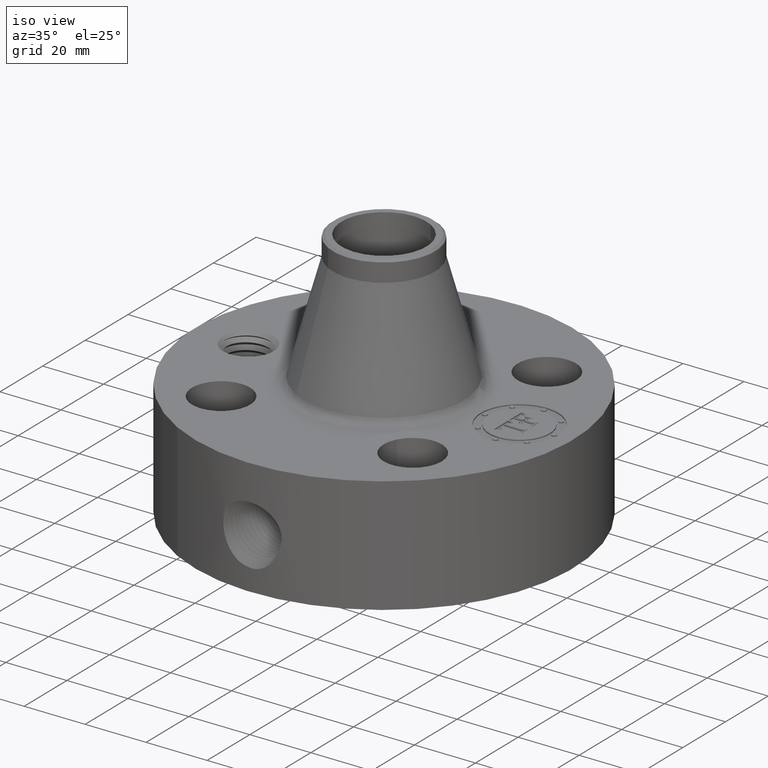
[diagram: clean part render]
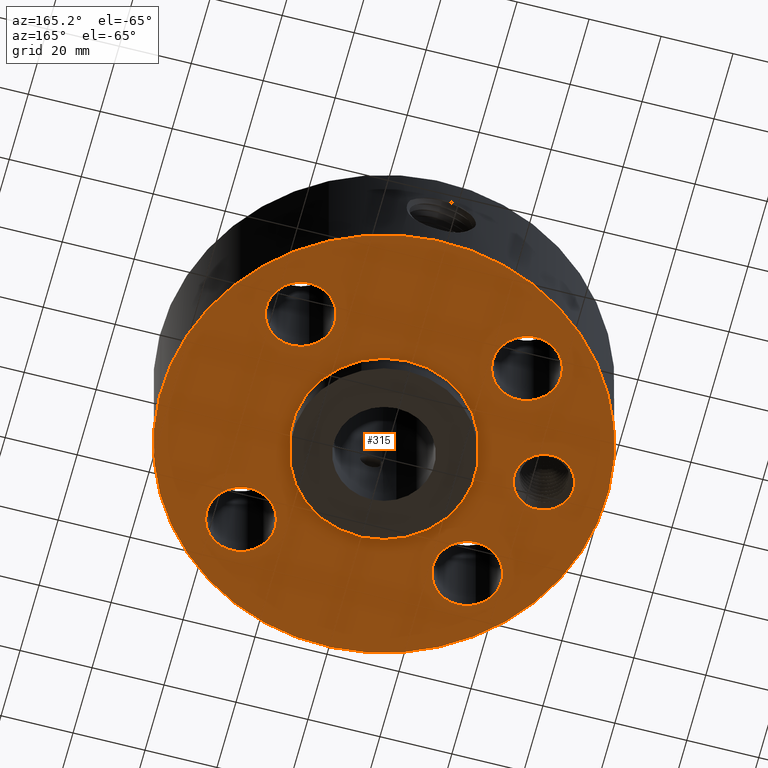
[diagram: tour spotlight — one face highlighted and labeled with its STEP entity id]
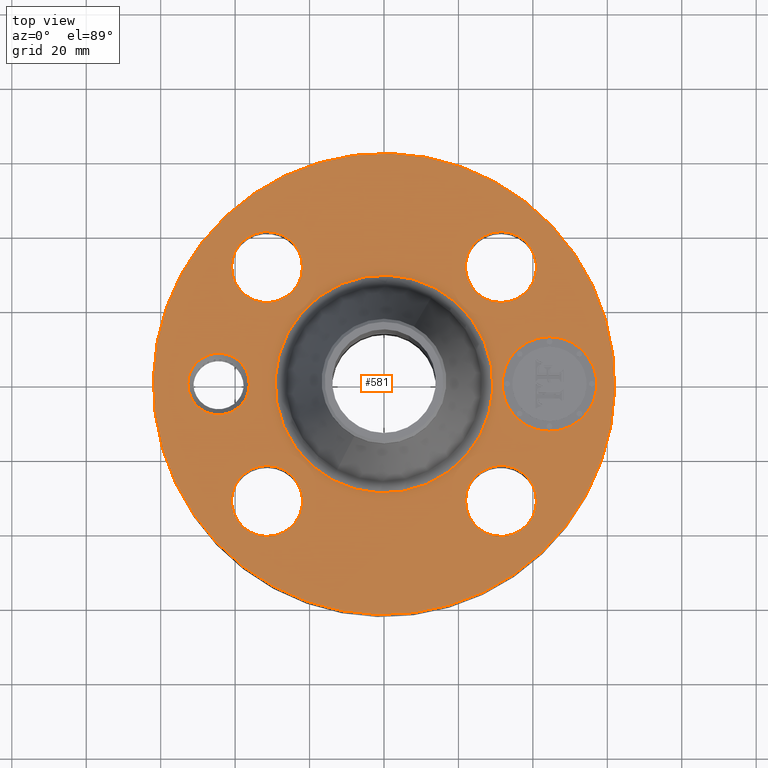
[diagram: tour spotlight — one face highlighted and labeled with its STEP entity id]
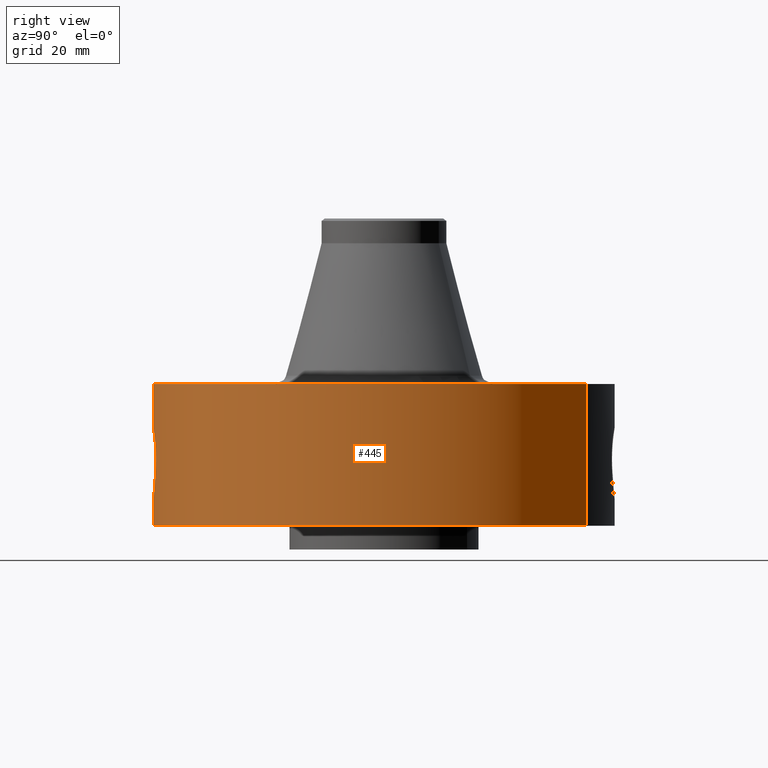
[diagram: tour spotlight — one face highlighted and labeled with its STEP entity id]
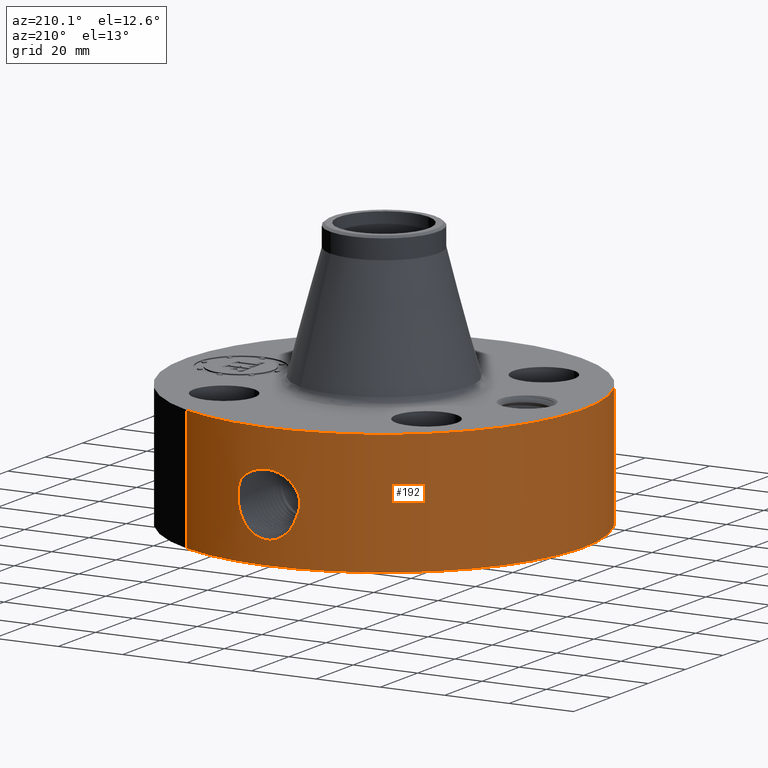
[diagram: tour spotlight — one face highlighted and labeled with its STEP entity id]
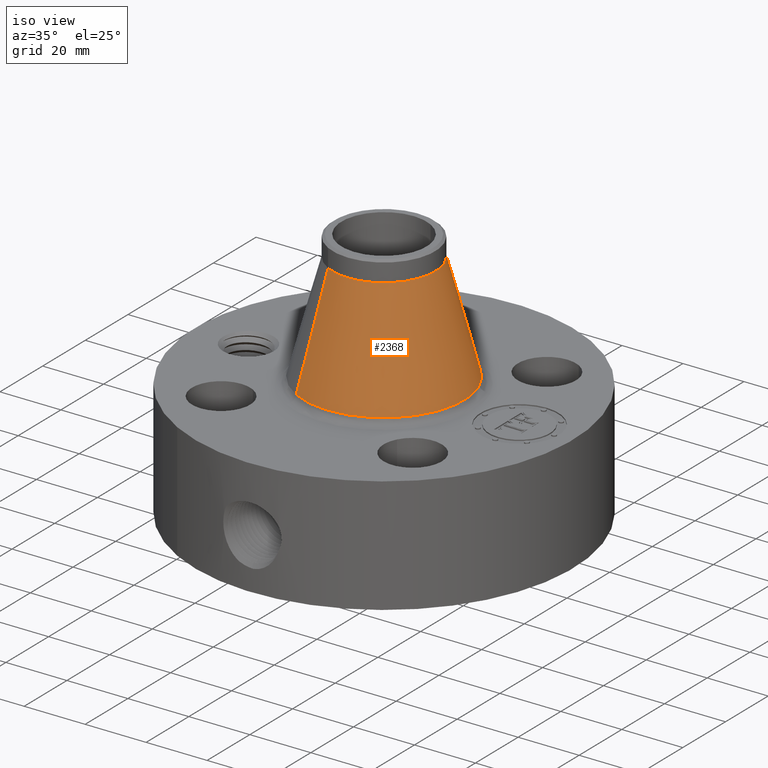
[diagram: tour spotlight — one face highlighted and labeled with its STEP entity id]
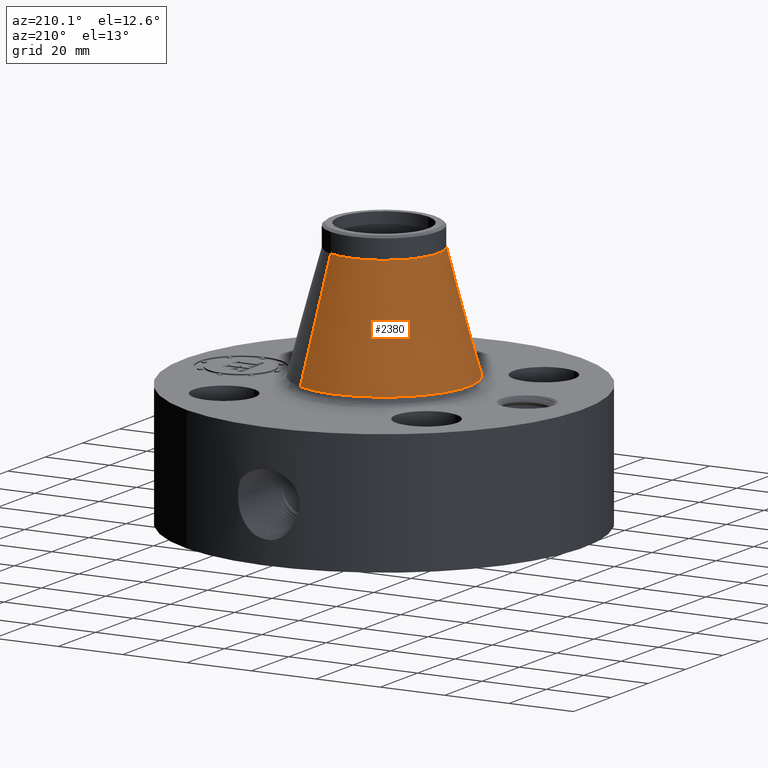
[diagram: tour spotlight — one face highlighted and labeled with its STEP entity id]
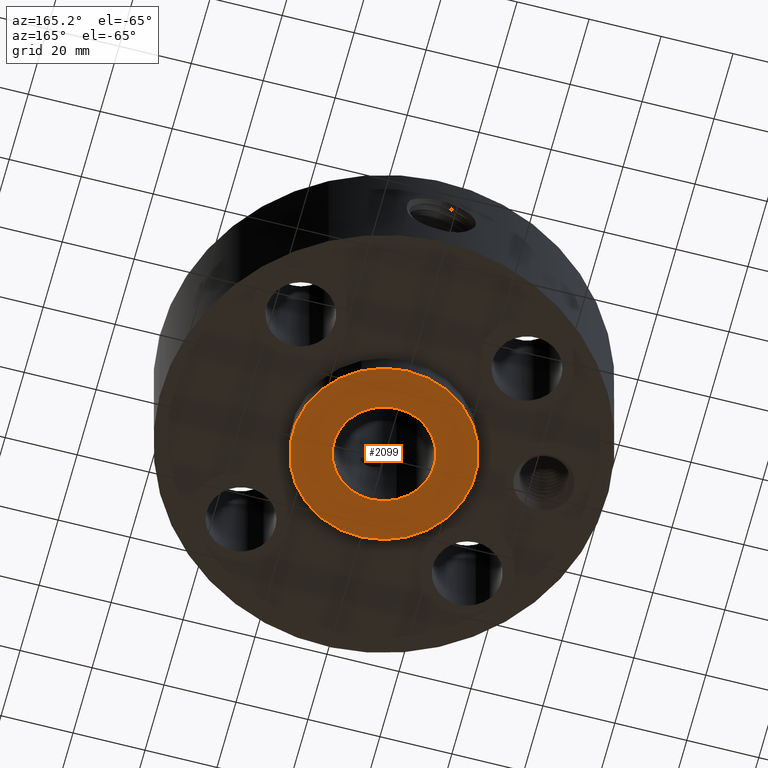
[diagram: tour spotlight — one face highlighted and labeled with its STEP entity id]
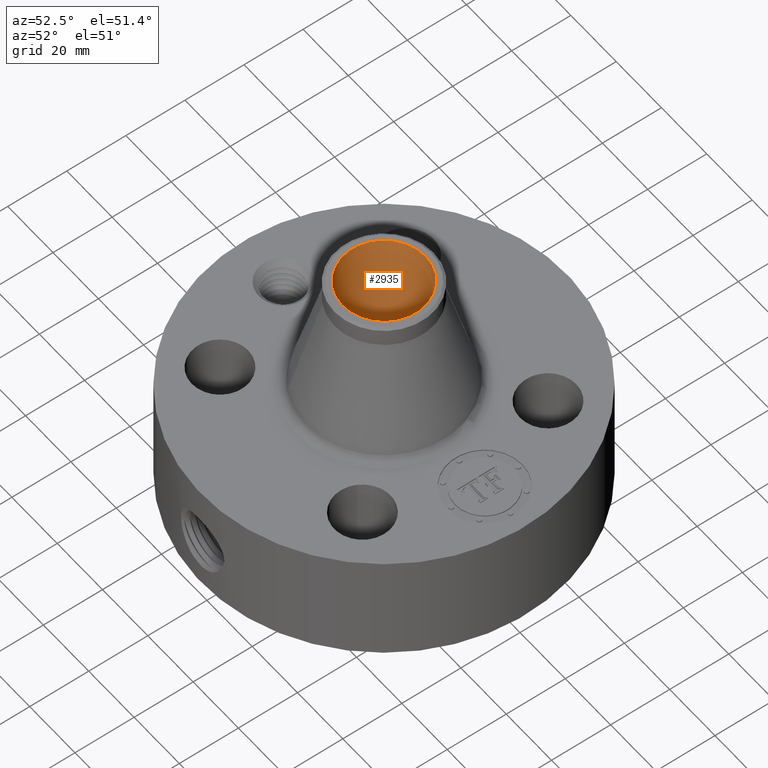
[diagram: tour spotlight — one face highlighted and labeled with its STEP entity id]
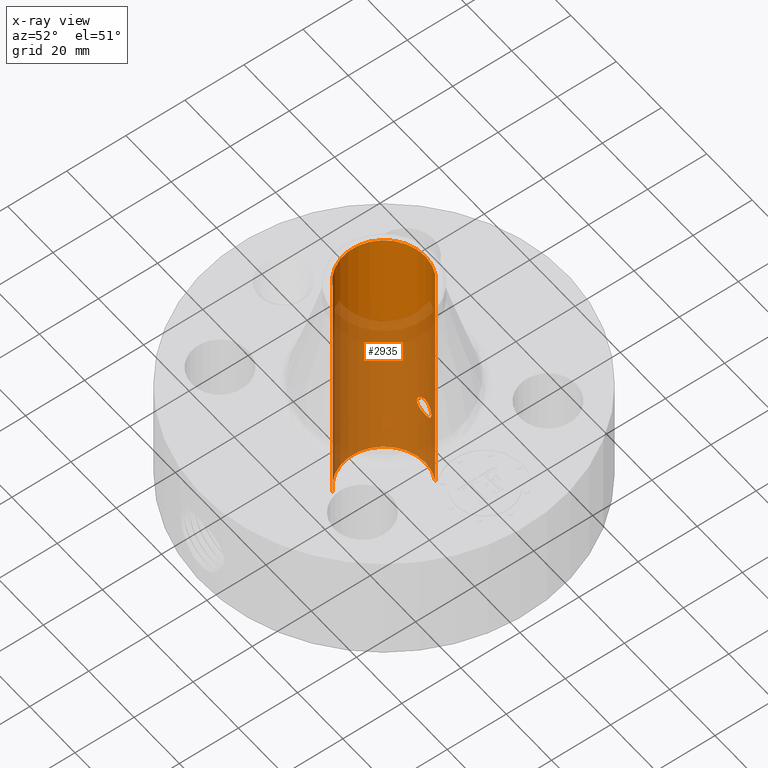
[diagram: x-ray of the same camera — body ghosted, this tour face saturated]
A machine part: a face-by-face anatomy tour. The part has 764 B-rep faces; the first image is the clean iso view, then the 8 largest visible faces are spotlighted one at a time (largest first), each with its STEP entity span.

Face 1 — auxiliary view, entity #315. In plain terms, the highlighted planar face has unit normal (0, 0, -1).
Definition (entity closure, byte-faithful):
#42=AXIS2_PLACEMENT_3D('Circle Axis2P3D',#40,#41,$) ;
#196=AXIS2_PLACEMENT_3D('Plane Axis2P3D',#193,#194,#195) ;
#200=AXIS2_PLACEMENT_3D('Circle Axis2P3D',#198,#199,$) ;
#209=AXIS2_PLACEMENT_3D('Circle Axis2P3D',#207,#208,$) ;
#218=AXIS2_PLACEMENT_3D('Circle Axis2P3D',#216,#217,$) ;
#227=AXIS2_PLACEMENT_3D('Circle Axis2P3D',#225,#226,$) ;
#236=AXIS2_PLACEMENT_3D('Circle Axis2P3D',#234,#235,$) ;
#245=AXIS2_PLACEMENT_3D('Circle Axis2P3D',#243,#244,$) ;
#254=AXIS2_PLACEMENT_3D('Circle Axis2P3D',#252,#253,$) ;
#263=AXIS2_PLACEMENT_3D('Circle Axis2P3D',#261,#262,$) ;
#272=AXIS2_PLACEMENT_3D('Circle Axis2P3D',#270,#271,$) ;
#281=AXIS2_PLACEMENT_3D('Circle Axis2P3D',#279,#280,$) ;
#290=AXIS2_PLACEMENT_3D('Circle Axis2P3D',#288,#289,$) ;
#299=AXIS2_PLACEMENT_3D('Circle Axis2P3D',#297,#298,$) ;
#308=AXIS2_PLACEMENT_3D('Circle Axis2P3D',#306,#307,$) ;
#40=CARTESIAN_POINT('Axis2P3D Location',(0.,0.,0.250000000001)) ;
#44=CARTESIAN_POINT('Vertex',(-1.1697983142,-2.14130145102,0.250000000001)) ;
#46=CARTESIAN_POINT('Vertex',(1.1697983142,2.14130145102,0.250000000001)) ;
#193=CARTESIAN_POINT('Axis2P3D Location',(0.,1.,0.250000000001)) ;
#198=CARTESIAN_POINT('Axis2P3D Location',(0.,0.,0.250000000001)) ;
#207=CARTESIAN_POINT('Axis2P3D Location',(-1.75000000001,0.,0.250000000001)) ;
#211=CARTESIAN_POINT('Vertex',(-1.46421523873,-0.156124926647,0.250000000001)) ;
#213=CARTESIAN_POINT('Vertex',(-2.03578476129,0.156124926647,0.250000000001)) ;
#216=CARTESIAN_POINT('Axis2P3D Location',(-1.75000000001,0.,0.250000000001)) ;
#225=CARTESIAN_POINT('Axis2P3D Location',(1.23743686708,-1.23743686708,0.250000000001)) ;
#229=CARTESIAN_POINT('Vertex',(1.56653032779,-1.41722144406,0.250000000001)) ;
#231=CARTESIAN_POINT('Vertex',(0.908343406371,-1.0576522901,0.250000000001)) ;
#234=CARTESIAN_POINT('Axis2P3D Location',(1.23743686708,-1.23743686708,0.250000000001)) ;
#243=CARTESIAN_POINT('Axis2P3D Location',(0.,0.,0.250000000001)) ;
#247=CARTESIAN_POINT('Vertex',(0.479425538606,0.877582561894,0.250000000001)) ;
#249=CARTESIAN_POINT('Vertex',(-0.479425538606,-0.877582561894,0.250000000001)) ;
#252=CARTESIAN_POINT('Axis2P3D Location',(0.,0.,0.250000000001)) ;
#261=CARTESIAN_POINT('Axis2P3D Location',(-1.23743686708,-1.23743686708,0.250000000001)) ;
#265=CARTESIAN_POINT('Vertex',(-1.0576522901,-0.908343406371,0.250000000001)) ;
#267=CARTESIAN_POINT('Vertex',(-1.41722144406,-1.56653032779,0.250000000001)) ;
#270=CARTESIAN_POINT('Axis2P3D Location',(-1.23743686708,-1.23743686708,0.250000000001)) ;
#279=CARTESIAN_POINT('Axis2P3D Location',(-1.23743686708,1.23743686708,0.250000000001)) ;
#283=CARTESIAN_POINT('Vertex',(-0.908343406371,1.0576522901,0.250000000001)) ;
#285=CARTESIAN_POINT('Vertex',(-1.56653032779,1.41722144406,0.250000000001)) ;
#288=CARTESIAN_POINT('Axis2P3D Location',(-1.23743686708,1.23743686708,0.250000000001)) ;
#297=CARTESIAN_POINT('Axis2P3D Location',(1.23743686708,1.23743686708,0.250000000001)) ;
#301=CARTESIAN_POINT('Vertex',(1.0576522901,0.908343406371,0.250000000001)) ;
#303=CARTESIAN_POINT('Vertex',(1.41722144406,1.56653032779,0.250000000001)) ;
#306=CARTESIAN_POINT('Axis2P3D Location',(1.23743686708,1.23743686708,0.250000000001)) ;
#41=DIRECTION('Axis2P3D Direction',(0.,0.,-0.0393700787402)) ;
#194=DIRECTION('Axis2P3D Direction',(0.,0.,-0.0393700787402)) ;
#195=DIRECTION('Axis2P3D XDirection',(0.0393700787402,0.,0.)) ;
#199=DIRECTION('Axis2P3D Direction',(0.,0.,-0.0393700787402)) ;
#208=DIRECTION('Axis2P3D Direction',(0.,0.,-0.0393700787402)) ;
#217=DIRECTION('Axis2P3D Direction',(0.,0.,-0.0393700787402)) ;
#226=DIRECTION('Axis2P3D Direction',(0.,0.,-0.0393700787402)) ;
#235=DIRECTION('Axis2P3D Direction',(0.,0.,-0.0393700787402)) ;
#244=DIRECTION('Axis2P3D Direction',(0.,0.,-0.0393700787402)) ;
#253=DIRECTION('Axis2P3D Direction',(0.,0.,-0.0393700787402)) ;
#262=DIRECTION('Axis2P3D Direction',(0.,0.,-0.0393700787402)) ;
#271=DIRECTION('Axis2P3D Direction',(0.,0.,-0.0393700787402)) ;
#280=DIRECTION('Axis2P3D Direction',(0.,0.,-0.0393700787402)) ;
#289=DIRECTION('Axis2P3D Direction',(0.,0.,-0.0393700787402)) ;
#298=DIRECTION('Axis2P3D Direction',(0.,0.,-0.0393700787402)) ;
#307=DIRECTION('Axis2P3D Direction',(0.,0.,-0.0393700787402)) ;
#204=ORIENTED_EDGE('',*,*,#48,.T.) ;
#205=ORIENTED_EDGE('',*,*,#202,.T.) ;
#222=ORIENTED_EDGE('',*,*,#215,.F.) ;
#223=ORIENTED_EDGE('',*,*,#220,.F.) ;
#240=ORIENTED_EDGE('',*,*,#233,.F.) ;
#241=ORIENTED_EDGE('',*,*,#238,.F.) ;
#258=ORIENTED_EDGE('',*,*,#251,.F.) ;
#259=ORIENTED_EDGE('',*,*,#256,.F.) ;
#276=ORIENTED_EDGE('',*,*,#269,.F.) ;
#277=ORIENTED_EDGE('',*,*,#274,.F.) ;
#294=ORIENTED_EDGE('',*,*,#287,.F.) ;
#295=ORIENTED_EDGE('',*,*,#292,.F.) ;
#312=ORIENTED_EDGE('',*,*,#305,.F.) ;
#313=ORIENTED_EDGE('',*,*,#310,.F.) ;
#224=FACE_BOUND('',#221,.T.) ;
#242=FACE_BOUND('',#239,.T.) ;
#260=FACE_BOUND('',#257,.T.) ;
#278=FACE_BOUND('',#275,.T.) ;
#296=FACE_BOUND('',#293,.T.) ;
#314=FACE_BOUND('',#311,.T.) ;
#315=ADVANCED_FACE('PartBody',(#206,#224,#242,#260,#278,#296,#314),#197,.T.) ;
#43=CIRCLE('generated circle',#42,2.44000000001) ;
#201=CIRCLE('generated circle',#200,2.44000000001) ;
#210=CIRCLE('generated circle',#209,0.325650000001) ;
#219=CIRCLE('generated circle',#218,0.325650000001) ;
#228=CIRCLE('generated circle',#227,0.375000000001) ;
#237=CIRCLE('generated circle',#236,0.375000000001) ;
#246=CIRCLE('generated circle',#245,1.) ;
#255=CIRCLE('generated circle',#254,1.) ;
#264=CIRCLE('generated circle',#263,0.375000000002) ;
#273=CIRCLE('generated circle',#272,0.375000000002) ;
#282=CIRCLE('generated circle',#281,0.375000000002) ;
#291=CIRCLE('generated circle',#290,0.375000000002) ;
#300=CIRCLE('generated circle',#299,0.375000000001) ;
#309=CIRCLE('generated circle',#308,0.375000000001) ;
#48=EDGE_CURVE('',#45,#47,#43,.T.) ;
#202=EDGE_CURVE('',#47,#45,#201,.T.) ;
#215=EDGE_CURVE('',#212,#214,#210,.T.) ;
#220=EDGE_CURVE('',#214,#212,#219,.T.) ;
#233=EDGE_CURVE('',#230,#232,#228,.T.) ;
#238=EDGE_CURVE('',#232,#230,#237,.T.) ;
#251=EDGE_CURVE('',#248,#250,#246,.T.) ;
#256=EDGE_CURVE('',#250,#248,#255,.T.) ;
#269=EDGE_CURVE('',#266,#268,#264,.T.) ;
#274=EDGE_CURVE('',#268,#266,#273,.T.) ;
#287=EDGE_CURVE('',#284,#286,#282,.T.) ;
#292=EDGE_CURVE('',#286,#284,#291,.T.) ;
#305=EDGE_CURVE('',#302,#304,#300,.T.) ;
#310=EDGE_CURVE('',#304,#302,#309,.T.) ;
#203=EDGE_LOOP('',(#204,#205)) ;
#221=EDGE_LOOP('',(#222,#223)) ;
#239=EDGE_LOOP('',(#240,#241)) ;
#257=EDGE_LOOP('',(#258,#259)) ;
#275=EDGE_LOOP('',(#276,#277)) ;
#293=EDGE_LOOP('',(#294,#295)) ;
#311=EDGE_LOOP('',(#312,#313)) ;
#206=FACE_OUTER_BOUND('',#203,.T.) ;
#197=PLANE('',#196) ;
#45=VERTEX_POINT('',#44) ;
#47=VERTEX_POINT('',#46) ;
#212=VERTEX_POINT('',#211) ;
#214=VERTEX_POINT('',#213) ;
#230=VERTEX_POINT('',#229) ;
#232=VERTEX_POINT('',#231) ;
#248=VERTEX_POINT('',#247) ;
#250=VERTEX_POINT('',#249) ;
#266=VERTEX_POINT('',#265) ;
#268=VERTEX_POINT('',#267) ;
#284=VERTEX_POINT('',#283) ;
#286=VERTEX_POINT('',#285) ;
#302=VERTEX_POINT('',#301) ;
#304=VERTEX_POINT('',#303) ;

Face 2 — top view, entity #581. In plain terms, the highlighted planar face has unit normal (0, 0, -1).
Definition (entity closure, byte-faithful):
#58=AXIS2_PLACEMENT_3D('Circle Axis2P3D',#56,#57,$) ;
#318=AXIS2_PLACEMENT_3D('Circle Axis2P3D',#316,#317,$) ;
#449=AXIS2_PLACEMENT_3D('Plane Axis2P3D',#446,#447,#448) ;
#457=AXIS2_PLACEMENT_3D('Circle Axis2P3D',#455,#456,$) ;
#466=AXIS2_PLACEMENT_3D('Circle Axis2P3D',#464,#465,$) ;
#475=AXIS2_PLACEMENT_3D('Circle Axis2P3D',#473,#474,$) ;
#484=AXIS2_PLACEMENT_3D('Circle Axis2P3D',#482,#483,$) ;
#493=AXIS2_PLACEMENT_3D('Circle Axis2P3D',#491,#492,$) ;
#502=AXIS2_PLACEMENT_3D('Circle Axis2P3D',#500,#501,$) ;
#511=AXIS2_PLACEMENT_3D('Circle Axis2P3D',#509,#510,$) ;
#520=AXIS2_PLACEMENT_3D('Circle Axis2P3D',#518,#519,$) ;
#529=AXIS2_PLACEMENT_3D('Circle Axis2P3D',#527,#528,$) ;
#538=AXIS2_PLACEMENT_3D('Circle Axis2P3D',#536,#537,$) ;
#547=AXIS2_PLACEMENT_3D('Circle Axis2P3D',#545,#546,$) ;
#556=AXIS2_PLACEMENT_3D('Circle Axis2P3D',#554,#555,$) ;
#565=AXIS2_PLACEMENT_3D('Circle Axis2P3D',#563,#564,$) ;
#574=AXIS2_PLACEMENT_3D('Circle Axis2P3D',#572,#573,$) ;
#53=CARTESIAN_POINT('Vertex',(-1.1697983142,-2.14130145102,1.75000000001)) ;
#56=CARTESIAN_POINT('Axis2P3D Location',(0.,0.,1.75000000001)) ;
#60=CARTESIAN_POINT('Vertex',(1.1697983142,2.14130145102,1.75000000001)) ;
#316=CARTESIAN_POINT('Axis2P3D Location',(0.,0.,1.75000000001)) ;
#446=CARTESIAN_POINT('Axis2P3D Location',(0.,2.44000000001,1.75000000001)) ;
#455=CARTESIAN_POINT('Axis2P3D Location',(-1.75000000001,5.59482469102E-016,1.75000000001)) ;
#459=CARTESIAN_POINT('Vertex',(-2.03578476129,0.156124926647,1.75000000001)) ;
#461=CARTESIAN_POINT('Vertex',(-1.46421523873,-0.156124926647,1.75000000001)) ;
#464=CARTESIAN_POINT('Axis2P3D Location',(-1.75000000001,5.59482469102E-016,1.75000000001)) ;
#473=CARTESIAN_POINT('Axis2P3D Location',(1.23743686708,-1.23743686708,1.75000000001)) ;
#477=CARTESIAN_POINT('Vertex',(0.908343406371,-1.0576522901,1.75000000001)) ;
#479=CARTESIAN_POINT('Vertex',(1.56653032779,-1.41722144406,1.75000000001)) ;
#482=CARTESIAN_POINT('Axis2P3D Location',(1.23743686708,-1.23743686708,1.75000000001)) ;
#491=CARTESIAN_POINT('Axis2P3D Location',(0.,0.,1.75000000001)) ;
#495=CARTESIAN_POINT('Vertex',(-0.552304154846,-1.0109859741,1.75000000001)) ;
#497=CARTESIAN_POINT('Vertex',(0.552304154846,1.0109859741,1.75000000001)) ;
#500=CARTESIAN_POINT('Axis2P3D Location',(0.,0.,1.75000000001)) ;
#509=CARTESIAN_POINT('Axis2P3D Location',(-1.23743686708,-1.23743686708,1.75000000001)) ;
#513=CARTESIAN_POINT('Vertex',(-1.41722144406,-1.56653032779,1.75000000001)) ;
#515=CARTESIAN_POINT('Vertex',(-1.0576522901,-0.908343406371,1.75000000001)) ;
#518=CARTESIAN_POINT('Axis2P3D Location',(-1.23743686708,-1.23743686708,1.75000000001)) ;
#527=CARTESIAN_POINT('Axis2P3D Location',(-1.23743686708,1.23743686708,1.75000000001)) ;
#531=CARTESIAN_POINT('Vertex',(-1.56653032779,1.41722144406,1.75000000001)) ;
#533=CARTESIAN_POINT('Vertex',(-0.908343406371,1.0576522901,1.75000000001)) ;
#536=CARTESIAN_POINT('Axis2P3D Location',(-1.23743686708,1.23743686708,1.75000000001)) ;
#545=CARTESIAN_POINT('Axis2P3D Location',(1.23743686708,1.23743686708,1.75000000001)) ;
#549=CARTESIAN_POINT('Vertex',(1.41722144406,1.56653032779,1.75000000001)) ;
#551=CARTESIAN_POINT('Vertex',(1.0576522901,0.908343406371,1.75000000001)) ;
#554=CARTESIAN_POINT('Axis2P3D Location',(1.23743686708,1.23743686708,1.75000000001)) ;
#563=CARTESIAN_POINT('Axis2P3D Location',(1.75000000001,-8.67197827109E-015,1.75000000001)) ;
#567=CARTESIAN_POINT('Vertex',(1.75000000001,0.499999995002,1.75000000001)) ;
#569=CARTESIAN_POINT('Vertex',(1.75000000001,-0.499999995002,1.75000000001)) ;
#572=CARTESIAN_POINT('Axis2P3D Location',(1.75000000001,-8.95171950564E-015,1.75000000001)) ;
#57=DIRECTION('Axis2P3D Direction',(0.,0.,-0.0393700787402)) ;
#317=DIRECTION('Axis2P3D Direction',(0.,0.,-0.0393700787402)) ;
#447=DIRECTION('Axis2P3D Direction',(0.,0.,-0.0393700787402)) ;
#448=DIRECTION('Axis2P3D XDirection',(0.0393700787402,0.,0.)) ;
#456=DIRECTION('Axis2P3D Direction',(0.,0.,-0.0393700787402)) ;
#465=DIRECTION('Axis2P3D Direction',(0.,0.,-0.0393700787402)) ;
#474=DIRECTION('Axis2P3D Direction',(0.,0.,-0.0393700787402)) ;
#483=DIRECTION('Axis2P3D Direction',(0.,0.,-0.0393700787402)) ;
#492=DIRECTION('Axis2P3D Direction',(0.,0.,-0.0393700787402)) ;
#501=DIRECTION('Axis2P3D Direction',(0.,0.,-0.0393700787402)) ;
#510=DIRECTION('Axis2P3D Direction',(0.,0.,-0.0393700787402)) ;
#519=DIRECTION('Axis2P3D Direction',(0.,0.,-0.0393700787402)) ;
#528=DIRECTION('Axis2P3D Direction',(0.,0.,-0.0393700787402)) ;
#537=DIRECTION('Axis2P3D Direction',(0.,0.,-0.0393700787402)) ;
#546=DIRECTION('Axis2P3D Direction',(0.,0.,-0.0393700787402)) ;
#555=DIRECTION('Axis2P3D Direction',(0.,0.,-0.0393700787402)) ;
#564=DIRECTION('Axis2P3D Direction',(0.,0.,-0.0393700787402)) ;
#573=DIRECTION('Axis2P3D Direction',(0.,0.,-0.0393700787402)) ;
#452=ORIENTED_EDGE('',*,*,#320,.F.) ;
#453=ORIENTED_EDGE('',*,*,#62,.F.) ;
#470=ORIENTED_EDGE('',*,*,#463,.T.) ;
#471=ORIENTED_EDGE('',*,*,#468,.T.) ;
#488=ORIENTED_EDGE('',*,*,#481,.T.) ;
#489=ORIENTED_EDGE('',*,*,#486,.T.) ;
#506=ORIENTED_EDGE('',*,*,#499,.T.) ;
#507=ORIENTED_EDGE('',*,*,#504,.T.) ;
#524=ORIENTED_EDGE('',*,*,#517,.T.) ;
#525=ORIENTED_EDGE('',*,*,#522,.T.) ;
#542=ORIENTED_EDGE('',*,*,#535,.T.) ;
#543=ORIENTED_EDGE('',*,*,#540,.T.) ;
#560=ORIENTED_EDGE('',*,*,#553,.T.) ;
#561=ORIENTED_EDGE('',*,*,#558,.T.) ;
#578=ORIENTED_EDGE('',*,*,#571,.T.) ;
#579=ORIENTED_EDGE('',*,*,#576,.T.) ;
#472=FACE_BOUND('',#469,.T.) ;
#490=FACE_BOUND('',#487,.T.) ;
#508=FACE_BOUND('',#505,.T.) ;
#526=FACE_BOUND('',#523,.T.) ;
#544=FACE_BOUND('',#541,.T.) ;
#562=FACE_BOUND('',#559,.T.) ;
#580=FACE_BOUND('',#577,.T.) ;
#581=ADVANCED_FACE('PartBody',(#454,#472,#490,#508,#526,#544,#562,#580),#450,.F.) ;
#59=CIRCLE('generated circle',#58,2.44000000001) ;
#319=CIRCLE('generated circle',#318,2.44000000001) ;
#458=CIRCLE('generated circle',#457,0.325650000001) ;
#467=CIRCLE('generated circle',#466,0.325650000001) ;
#476=CIRCLE('generated circle',#475,0.375000000001) ;
#485=CIRCLE('generated circle',#484,0.375000000001) ;
#494=CIRCLE('generated circle',#493,1.15201237809) ;
#503=CIRCLE('generated circle',#502,1.15201237809) ;
#512=CIRCLE('generated circle',#511,0.375000000002) ;
#521=CIRCLE('generated circle',#520,0.375000000002) ;
#530=CIRCLE('generated circle',#529,0.375000000002) ;
#539=CIRCLE('generated circle',#538,0.375000000002) ;
#548=CIRCLE('generated circle',#547,0.375000000001) ;
#557=CIRCLE('generated circle',#556,0.375000000001) ;
#566=CIRCLE('generated circle',#565,0.499999995002) ;
#575=CIRCLE('generated circle',#574,0.499999995002) ;
#62=EDGE_CURVE('',#54,#61,#59,.T.) ;
#320=EDGE_CURVE('',#61,#54,#319,.T.) ;
#463=EDGE_CURVE('',#460,#462,#458,.T.) ;
#468=EDGE_CURVE('',#462,#460,#467,.T.) ;
#481=EDGE_CURVE('',#478,#480,#476,.T.) ;
#486=EDGE_CURVE('',#480,#478,#485,.T.) ;
#499=EDGE_CURVE('',#496,#498,#494,.T.) ;
#504=EDGE_CURVE('',#498,#496,#503,.T.) ;
#517=EDGE_CURVE('',#514,#516,#512,.T.) ;
#522=EDGE_CURVE('',#516,#514,#521,.T.) ;
#535=EDGE_CURVE('',#532,#534,#530,.T.) ;
#540=EDGE_CURVE('',#534,#532,#539,.T.) ;
#553=EDGE_CURVE('',#550,#552,#548,.T.) ;
#558=EDGE_CURVE('',#552,#550,#557,.T.) ;
#571=EDGE_CURVE('',#568,#570,#566,.T.) ;
#576=EDGE_CURVE('',#570,#568,#575,.T.) ;
#451=EDGE_LOOP('',(#452,#453)) ;
#469=EDGE_LOOP('',(#470,#471)) ;
#487=EDGE_LOOP('',(#488,#489)) ;
#505=EDGE_LOOP('',(#506,#507)) ;
#523=EDGE_LOOP('',(#524,#525)) ;
#541=EDGE_LOOP('',(#542,#543)) ;
#559=EDGE_LOOP('',(#560,#561)) ;
#577=EDGE_LOOP('',(#578,#579)) ;
#454=FACE_OUTER_BOUND('',#451,.T.) ;
#450=PLANE('',#449) ;
#54=VERTEX_POINT('',#53) ;
#61=VERTEX_POINT('',#60) ;
#460=VERTEX_POINT('',#459) ;
#462=VERTEX_POINT('',#461) ;
#478=VERTEX_POINT('',#477) ;
#480=VERTEX_POINT('',#479) ;
#496=VERTEX_POINT('',#495) ;
#498=VERTEX_POINT('',#497) ;
#514=VERTEX_POINT('',#513) ;
#516=VERTEX_POINT('',#515) ;
#532=VERTEX_POINT('',#531) ;
#534=VERTEX_POINT('',#533) ;
#550=VERTEX_POINT('',#549) ;
#552=VERTEX_POINT('',#551) ;
#568=VERTEX_POINT('',#567) ;
#570=VERTEX_POINT('',#569) ;

Face 3 — right view, entity #445. In plain terms, the highlighted cylindrical surface (partial cylindrical patch) has radius 61.976 mm, axis along (0, 0, -1).
Definition (entity closure, byte-faithful):
#38=AXIS2_PLACEMENT_3D('Cylinder Axis2P3D',#35,#36,#37) ;
#200=AXIS2_PLACEMENT_3D('Circle Axis2P3D',#198,#199,$) ;
#318=AXIS2_PLACEMENT_3D('Circle Axis2P3D',#316,#317,$) ;
#35=CARTESIAN_POINT('Axis2P3D Location',(0.,0.,1.75000000001)) ;
#44=CARTESIAN_POINT('Vertex',(-1.1697983142,-2.14130145102,0.250000000001)) ;
#46=CARTESIAN_POINT('Vertex',(1.1697983142,2.14130145102,0.250000000001)) ;
#49=CARTESIAN_POINT('Line Origine',(-1.1697983142,-2.14130145102,1.)) ;
#53=CARTESIAN_POINT('Vertex',(-1.1697983142,-2.14130145102,1.75000000001)) ;
#60=CARTESIAN_POINT('Vertex',(1.1697983142,2.14130145102,1.75000000001)) ;
#63=CARTESIAN_POINT('Line Origine',(1.1697983142,2.14130145102,1.)) ;
#198=CARTESIAN_POINT('Axis2P3D Location',(0.,0.,0.250000000001)) ;
#316=CARTESIAN_POINT('Axis2P3D Location',(0.,0.,1.75000000001)) ;
#328=CARTESIAN_POINT('Control Point',(0.16192159428,-2.4346214074,1.25474246112)) ;
#329=CARTESIAN_POINT('Control Point',(0.124761678529,-2.43709283592,1.27394650423)) ;
#330=CARTESIAN_POINT('Control Point',(0.0845285010656,-2.43901250296,1.28730102498)) ;
#331=CARTESIAN_POINT('Control Point',(0.0426266264076,-2.43998754964,1.2940330846)) ;
#332=CARTESIAN_POINT('Control Point',(0.000718733828733,-2.43999989415,1.29411849633)) ;
#333=CARTESIAN_POINT('Vertex',(0.161921600554,-2.43462140699,1.25474245804)) ;
#335=CARTESIAN_POINT('Vertex',(0.000718469330927,-2.43999989423,1.29411850216)) ;
#339=CARTESIAN_POINT('Control Point',(0.16989837306,-2.43407776024,1.25094225976)) ;
#340=CARTESIAN_POINT('Control Point',(0.167252431002,-2.43426244672,1.25223769882)) ;
#341=CARTESIAN_POINT('Control Point',(0.164593290178,-2.43444371847,1.25350443879)) ;
#342=CARTESIAN_POINT('Control Point',(0.161921599901,-2.43462140702,1.25474245516)) ;
#343=CARTESIAN_POINT('Vertex',(0.16989837306,-2.43407776024,1.25094225976)) ;
#347=CARTESIAN_POINT('Control Point',(0.328116375832,-2.41783780348,0.808661705007)) ;
#348=CARTESIAN_POINT('Control Point',(0.351266820574,-2.41469613699,0.8479206534)) ;
#349=CARTESIAN_POINT('Control Point',(0.367537068292,-2.41220597774,0.891967145643)) ;
#350=CARTESIAN_POINT('Control Point',(0.374754426077,-2.41102143693,0.939647099958)) ;
#351=CARTESIAN_POINT('Control Point',(0.370017243738,-2.41184047452,1.00871566147)) ;
#352=CARTESIAN_POINT('Control Point',(0.346589033702,-2.41527741307,1.0725719509)) ;
#353=CARTESIAN_POINT('Control Point',(0.337668385423,-2.41655315054,1.09162203602)) ;
#354=CARTESIAN_POINT('Control Point',(0.307764301181,-2.42066054004,1.1438749814)) ;
#355=CARTESIAN_POINT('Control Point',(0.266998882782,-2.42558826776,1.18820864015)) ;
#356=CARTESIAN_POINT('Control Point',(0.236947873251,-2.428785004,1.21314596386)) ;
#357=CARTESIAN_POINT('Control Point',(0.20435586507,-2.4316726309,1.23407205562)) ;
#358=CARTESIAN_POINT('Control Point',(0.16989837306,-2.43407776024,1.25094225976)) ;
#359=CARTESIAN_POINT('Vertex',(0.328116855676,-2.4178375316,0.808661757571)) ;
#363=CARTESIAN_POINT('Control Point',(0.320424227437,-2.41886922229,0.790797428482)) ;
#364=CARTESIAN_POINT('Control Point',(0.323151379818,-2.41850796022,0.796680963762)) ;
#365=CARTESIAN_POINT('Control Point',(0.325717354746,-2.41816336819,0.802639990313)) ;
#366=CARTESIAN_POINT('Control Point',(0.328118233164,-2.41783755143,0.808665582028)) ;
#367=CARTESIAN_POINT('Vertex',(0.320424889206,-2.41886937017,0.790798496527)) ;
#371=CARTESIAN_POINT('Control Point',(0.0268393869742,-2.43985238229,0.530897557486)) ;
#372=CARTESIAN_POINT('Control Point',(0.111814828559,-2.43891761723,0.542087008344)) ;
#373=CARTESIAN_POINT('Control Point',(0.192381472739,-2.43423204041,0.582047115168)) ;
#374=CARTESIAN_POINT('Control Point',(0.253315115567,-2.42735806073,0.644291367858)) ;
#375=CARTESIAN_POINT('Control Point',(0.296042119695,-2.42209908944,0.71516763612)) ;
#376=CARTESIAN_POINT('Control Point',(0.320424558949,-2.41886917837,0.790798572524)) ;
#377=CARTESIAN_POINT('Vertex',(0.0268393869742,-2.43985238229,0.530897557486)) ;
#381=CARTESIAN_POINT('Control Point',(0.0268393869742,-2.43985238229,0.530897557486)) ;
#382=CARTESIAN_POINT('Control Point',(0.0178847963814,-2.43995088649,0.530836461707)) ;
#383=CARTESIAN_POINT('Control Point',(0.00893312393866,-2.44000001,0.530995456445)) ;
#384=CARTESIAN_POINT('Control Point',(-2.72878353948E-006,-2.44000000001,0.531374667804)) ;
#385=CARTESIAN_POINT('Vertex',(-2.72878353754E-006,-2.44000000001,0.531374667804)) ;
#389=CARTESIAN_POINT('Control Point',(-0.165476014271,-2.43438240397,0.565083204059)) ;
#390=CARTESIAN_POINT('Control Point',(-0.112562343708,-2.43797918617,0.544988923625)) ;
#391=CARTESIAN_POINT('Control Point',(-0.0565393148656,-2.43999993678,0.533773914324)) ;
#392=CARTESIAN_POINT('Control Point',(-2.72878353733E-006,-2.44000000001,0.531374667804)) ;
#393=CARTESIAN_POINT('Vertex',(-0.165476014271,-2.43438240397,0.565083204059)) ;
#397=CARTESIAN_POINT('Control Point',(-0.165476014271,-2.43438240397,0.565083204059)) ;
#398=CARTESIAN_POINT('Control Point',(-0.175740725453,-2.43368466499,0.570334729546)) ;
#399=CARTESIAN_POINT('Control Point',(-0.185738859904,-2.43293967132,0.576087631637)) ;
#400=CARTESIAN_POINT('Control Point',(-0.195421989316,-2.43216164063,0.582285375744)) ;
#401=CARTESIAN_POINT('Vertex',(-0.195421989316,-2.43216164063,0.582285375744)) ;
#405=CARTESIAN_POINT('Control Point',(-0.195421989316,-2.43216164063,0.582285375744)) ;
#406=CARTESIAN_POINT('Control Point',(-0.247998255523,-2.42793718516,0.615937124179)) ;
#407=CARTESIAN_POINT('Control Point',(-0.293011536387,-2.42289055425,0.660601235597)) ;
#408=CARTESIAN_POINT('Control Point',(-0.328229760176,-2.41805808128,0.712425717443)) ;
#409=CARTESIAN_POINT('Control Point',(-0.382261864306,-2.41005605017,0.829676974257)) ;
#410=CARTESIAN_POINT('Control Point',(-0.395270513627,-2.40773032595,0.958065769558)) ;
#411=CARTESIAN_POINT('Control Point',(-0.390965855314,-2.40847371398,1.02561774608)) ;
#412=CARTESIAN_POINT('Control Point',(-0.375402852352,-2.41110143503,1.09202151236)) ;
#413=CARTESIAN_POINT('Control Point',(-0.348525615673,-2.4149803095,1.15442637902)) ;
#414=CARTESIAN_POINT('Vertex',(-0.348525615673,-2.4149803095,1.15442637902)) ;
#418=CARTESIAN_POINT('Control Point',(-0.348525615673,-2.4149803095,1.15442637902)) ;
#419=CARTESIAN_POINT('Control Point',(-0.294301956471,-2.42280577049,1.21385963823)) ;
#420=CARTESIAN_POINT('Control Point',(-0.226049836587,-2.43110253319,1.25810660709)) ;
#421=CARTESIAN_POINT('Control Point',(-0.15199942415,-2.43708486052,1.28575229227)) ;
#422=CARTESIAN_POINT('Control Point',(-0.0753413751173,-2.44000079858,1.29784713552)) ;
#423=CARTESIAN_POINT('Control Point',(2.58579354728E-005,-2.43999999987,1.29415298447)) ;
#424=CARTESIAN_POINT('Vertex',(2.58579354723E-005,-2.43999999987,1.29415298447)) ;
#428=CARTESIAN_POINT('Control Point',(0.000718469314804,-2.43999989423,1.29411850215)) ;
#429=CARTESIAN_POINT('Control Point',(0.000372184904074,-2.4399999962,1.29413600915)) ;
#430=CARTESIAN_POINT('Control Point',(2.58579482142E-005,-2.43999999987,1.29415298447)) ;
#36=DIRECTION('Axis2P3D Direction',(0.,0.,-0.0393700787402)) ;
#37=DIRECTION('Axis2P3D XDirection',(0.0188750212049,0.0345504945626,0.)) ;
#50=DIRECTION('Vector Direction',(0.,0.,-0.0393700787402)) ;
#64=DIRECTION('Vector Direction',(0.,0.,-0.0393700787402)) ;
#199=DIRECTION('Axis2P3D Direction',(0.,0.,-0.0393700787402)) ;
#317=DIRECTION('Axis2P3D Direction',(0.,0.,-0.0393700787402)) ;
#51=VECTOR('Line Direction',#50,0.0393700787402) ;
#65=VECTOR('Line Direction',#64,0.0393700787402) ;
#322=ORIENTED_EDGE('',*,*,#202,.F.) ;
#323=ORIENTED_EDGE('',*,*,#67,.T.) ;
#324=ORIENTED_EDGE('',*,*,#320,.T.) ;
#325=ORIENTED_EDGE('',*,*,#55,.F.) ;
#433=ORIENTED_EDGE('',*,*,#337,.F.) ;
#434=ORIENTED_EDGE('',*,*,#345,.F.) ;
#435=ORIENTED_EDGE('',*,*,#361,.F.) ;
#436=ORIENTED_EDGE('',*,*,#369,.F.) ;
#437=ORIENTED_EDGE('',*,*,#379,.F.) ;
#438=ORIENTED_EDGE('',*,*,#387,.T.) ;
#439=ORIENTED_EDGE('',*,*,#395,.F.) ;
#440=ORIENTED_EDGE('',*,*,#403,.T.) ;
#441=ORIENTED_EDGE('',*,*,#416,.T.) ;
#442=ORIENTED_EDGE('',*,*,#426,.T.) ;
#443=ORIENTED_EDGE('',*,*,#431,.F.) ;
#444=FACE_BOUND('',#432,.T.) ;
#445=ADVANCED_FACE('PartBody',(#326,#444),#39,.T.) ;
#327=B_SPLINE_CURVE_WITH_KNOTS('',4,(#328,#329,#330,#331,#332),.UNSPECIFIED.,.F.,.U.,(5,5),(0.175518252428,6.37462366414),.UNSPECIFIED.) ;
#338=B_SPLINE_CURVE_WITH_KNOTS('',3,(#339,#340,#341,#342),.UNSPECIFIED.,.F.,.U.,(4,4),(0.,0.330159466825),.UNSPECIFIED.) ;
#346=B_SPLINE_CURVE_WITH_KNOTS('',5,(#347,#348,#349,#350,#351,#352,#353,#354,#355,#356,#357,#358),.UNSPECIFIED.,.F.,.U.,(6,3,3,6),(0.,8.53095212112,12.3556762992,19.5216604216),.UNSPECIFIED.) ;
#362=B_SPLINE_CURVE_WITH_KNOTS('',3,(#363,#364,#365,#366),.UNSPECIFIED.,.F.,.U.,(4,4),(9.5654075029,10.2865901365),.UNSPECIFIED.) ;
#370=B_SPLINE_CURVE_WITH_KNOTS('',5,(#371,#372,#373,#374,#375,#376),.UNSPECIFIED.,.F.,.U.,(6,6),(0.,14.8989557164),.UNSPECIFIED.) ;
#380=B_SPLINE_CURVE_WITH_KNOTS('',3,(#381,#382,#383,#384),.UNSPECIFIED.,.F.,.U.,(4,4),(0.,0.933901051561),.UNSPECIFIED.) ;
#388=B_SPLINE_CURVE_WITH_KNOTS('',3,(#389,#390,#391,#392),.UNSPECIFIED.,.F.,.U.,(4,4),(0.,5.9087340433),.UNSPECIFIED.) ;
#396=B_SPLINE_CURVE_WITH_KNOTS('',3,(#397,#398,#399,#400),.UNSPECIFIED.,.F.,.U.,(4,4),(0.,1.203436921),.UNSPECIFIED.) ;
#404=B_SPLINE_CURVE_WITH_KNOTS('',5,(#405,#406,#407,#408,#409,#410,#411,#412,#413),.UNSPECIFIED.,.F.,.U.,(6,3,6),(0.,10.890456429,22.7389374494),.UNSPECIFIED.) ;
#417=B_SPLINE_CURVE_WITH_KNOTS('',5,(#418,#419,#420,#421,#422,#423),.UNSPECIFIED.,.F.,.U.,(6,6),(0.,14.0876899551),.UNSPECIFIED.) ;
#427=B_SPLINE_CURVE_WITH_KNOTS('',2,(#428,#429,#430),.UNSPECIFIED.,.F.,.U.,(3,3),(1.28066519652,1.30655945912),.UNSPECIFIED.) ;
#201=CIRCLE('generated circle',#200,2.44000000001) ;
#319=CIRCLE('generated circle',#318,2.44000000001) ;
#39=CYLINDRICAL_SURFACE('generated cylinder',#38,2.44000000001) ;
#55=EDGE_CURVE('',#45,#54,#52,.F.) ;
#67=EDGE_CURVE('',#47,#61,#66,.F.) ;
#202=EDGE_CURVE('',#47,#45,#201,.T.) ;
#320=EDGE_CURVE('',#61,#54,#319,.T.) ;
#337=EDGE_CURVE('',#334,#336,#327,.T.) ;
#345=EDGE_CURVE('',#344,#334,#338,.T.) ;
#361=EDGE_CURVE('',#360,#344,#346,.T.) ;
#369=EDGE_CURVE('',#368,#360,#362,.T.) ;
#379=EDGE_CURVE('',#378,#368,#370,.T.) ;
#387=EDGE_CURVE('',#378,#386,#380,.T.) ;
#395=EDGE_CURVE('',#394,#386,#388,.T.) ;
#403=EDGE_CURVE('',#394,#402,#396,.T.) ;
#416=EDGE_CURVE('',#402,#415,#404,.T.) ;
#426=EDGE_CURVE('',#415,#425,#417,.T.) ;
#431=EDGE_CURVE('',#336,#425,#427,.T.) ;
#321=EDGE_LOOP('',(#322,#323,#324,#325)) ;
#432=EDGE_LOOP('',(#433,#434,#435,#436,#437,#438,#439,#440,#441,#442,#443)) ;
#326=FACE_OUTER_BOUND('',#321,.T.) ;
#52=LINE('Line',#49,#51) ;
#66=LINE('Line',#63,#65) ;
#45=VERTEX_POINT('',#44) ;
#47=VERTEX_POINT('',#46) ;
#54=VERTEX_POINT('',#53) ;
#61=VERTEX_POINT('',#60) ;
#334=VERTEX_POINT('',#333) ;
#336=VERTEX_POINT('',#335) ;
#344=VERTEX_POINT('',#343) ;
#360=VERTEX_POINT('',#359) ;
#368=VERTEX_POINT('',#367) ;
#378=VERTEX_POINT('',#377) ;
#386=VERTEX_POINT('',#385) ;
#394=VERTEX_POINT('',#393) ;
#402=VERTEX_POINT('',#401) ;
#415=VERTEX_POINT('',#414) ;
#425=VERTEX_POINT('',#424) ;

Face 4 — auxiliary view, entity #192. In plain terms, the highlighted cylindrical surface (partial cylindrical patch) has radius 61.976 mm, axis along (0, 0, -1).
Definition (entity closure, byte-faithful):
#38=AXIS2_PLACEMENT_3D('Cylinder Axis2P3D',#35,#36,#37) ;
#42=AXIS2_PLACEMENT_3D('Circle Axis2P3D',#40,#41,$) ;
#58=AXIS2_PLACEMENT_3D('Circle Axis2P3D',#56,#57,$) ;
#35=CARTESIAN_POINT('Axis2P3D Location',(0.,0.,1.75000000001)) ;
#40=CARTESIAN_POINT('Axis2P3D Location',(0.,0.,0.250000000001)) ;
#44=CARTESIAN_POINT('Vertex',(-1.1697983142,-2.14130145102,0.250000000001)) ;
#46=CARTESIAN_POINT('Vertex',(1.1697983142,2.14130145102,0.250000000001)) ;
#49=CARTESIAN_POINT('Line Origine',(-1.1697983142,-2.14130145102,1.)) ;
#53=CARTESIAN_POINT('Vertex',(-1.1697983142,-2.14130145102,1.75000000001)) ;
#56=CARTESIAN_POINT('Axis2P3D Location',(0.,0.,1.75000000001)) ;
#60=CARTESIAN_POINT('Vertex',(1.1697983142,2.14130145102,1.75000000001)) ;
#63=CARTESIAN_POINT('Line Origine',(1.1697983142,2.14130145102,1.)) ;
#75=CARTESIAN_POINT('Control Point',(-0.16192159428,2.4346214074,1.25474246112)) ;
#76=CARTESIAN_POINT('Control Point',(-0.124761678529,2.43709283592,1.27394650423)) ;
#77=CARTESIAN_POINT('Control Point',(-0.0845285010663,2.43901250296,1.28730102498)) ;
#78=CARTESIAN_POINT('Control Point',(-0.042626626409,2.43998754964,1.2940330846)) ;
#79=CARTESIAN_POINT('Control Point',(-0.000718733828892,2.43999989415,1.29411849633)) ;
#80=CARTESIAN_POINT('Vertex',(-0.161921600554,2.43462140699,1.25474245803)) ;
#82=CARTESIAN_POINT('Vertex',(-0.000718469330936,2.43999989423,1.29411850216)) ;
#86=CARTESIAN_POINT('Control Point',(-0.16989837306,2.43407776024,1.25094225976)) ;
#87=CARTESIAN_POINT('Control Point',(-0.167252431002,2.43426244672,1.25223769882)) ;
#88=CARTESIAN_POINT('Control Point',(-0.164593290179,2.43444371847,1.25350443879)) ;
#89=CARTESIAN_POINT('Control Point',(-0.161921599901,2.43462140702,1.25474245516)) ;
#90=CARTESIAN_POINT('Vertex',(-0.16989837306,2.43407776024,1.25094225976)) ;
#94=CARTESIAN_POINT('Control Point',(-0.328116375832,2.41783780348,0.808661705007)) ;
#95=CARTESIAN_POINT('Control Point',(-0.351266820571,2.41469613699,0.847920653395)) ;
#96=CARTESIAN_POINT('Control Point',(-0.367537068286,2.41220597774,0.891967145635)) ;
#97=CARTESIAN_POINT('Control Point',(-0.374754426077,2.41102143693,0.939647099969)) ;
#98=CARTESIAN_POINT('Control Point',(-0.370017243736,2.41184047452,1.00871566147)) ;
#99=CARTESIAN_POINT('Control Point',(-0.346589033701,2.41527741307,1.0725719509)) ;
#100=CARTESIAN_POINT('Control Point',(-0.337668385426,2.41655315053,1.09162203602)) ;
#101=CARTESIAN_POINT('Control Point',(-0.307764301181,2.42066054004,1.1438749814)) ;
#102=CARTESIAN_POINT('Control Point',(-0.26699888278,2.42558826776,1.18820864016)) ;
#103=CARTESIAN_POINT('Control Point',(-0.236947873254,2.428785004,1.21314596385)) ;
#104=CARTESIAN_POINT('Control Point',(-0.204355865071,2.4316726309,1.23407205562)) ;
#105=CARTESIAN_POINT('Control Point',(-0.16989837306,2.43407776024,1.25094225976)) ;
#106=CARTESIAN_POINT('Vertex',(-0.328116855676,2.4178375316,0.808661757571)) ;
#110=CARTESIAN_POINT('Control Point',(-0.320424227439,2.41886922229,0.790797428485)) ;
#111=CARTESIAN_POINT('Control Point',(-0.323151379819,2.41850796022,0.796680963765)) ;
#112=CARTESIAN_POINT('Control Point',(-0.325717354747,2.41816336819,0.802639990316)) ;
#113=CARTESIAN_POINT('Control Point',(-0.328118233165,2.41783755143,0.808665582031)) ;
#114=CARTESIAN_POINT('Vertex',(-0.320424889206,2.41886937017,0.790798496527)) ;
#118=CARTESIAN_POINT('Control Point',(-0.0268393869742,2.43985238229,0.530897557486)) ;
#119=CARTESIAN_POINT('Control Point',(-0.111814828564,2.43891761723,0.542087008345)) ;
#120=CARTESIAN_POINT('Control Point',(-0.192381472729,2.43423204041,0.582047115165)) ;
#121=CARTESIAN_POINT('Control Point',(-0.253315115583,2.42735806073,0.644291367872)) ;
#122=CARTESIAN_POINT('Control Point',(-0.296042119693,2.42209908944,0.715167636115)) ;
#123=CARTESIAN_POINT('Control Point',(-0.320424558949,2.41886917837,0.790798572524)) ;
#124=CARTESIAN_POINT('Vertex',(-0.0268393869742,2.43985238229,0.530897557486)) ;
#128=CARTESIAN_POINT('Control Point',(-0.0268393869742,2.43985238229,0.530897557486)) ;
#129=CARTESIAN_POINT('Control Point',(-0.0178847963814,2.43995088649,0.530836461707)) ;
#130=CARTESIAN_POINT('Control Point',(-0.00893312393866,2.44000001,0.530995456445)) ;
#131=CARTESIAN_POINT('Control Point',(2.72878353701E-006,2.44000000001,0.531374667804)) ;
#132=CARTESIAN_POINT('Vertex',(2.72878353722E-006,2.44000000001,0.531374667804)) ;
#136=CARTESIAN_POINT('Control Point',(0.165476014271,2.43438240397,0.565083204059)) ;
#137=CARTESIAN_POINT('Control Point',(0.112562343707,2.43797918617,0.544988923625)) ;
#138=CARTESIAN_POINT('Control Point',(0.0565393148663,2.43999993678,0.533773914324)) ;
#139=CARTESIAN_POINT('Control Point',(2.72878354135E-006,2.44000000001,0.531374667804)) ;
#140=CARTESIAN_POINT('Vertex',(0.165476014271,2.43438240397,0.565083204059)) ;
#144=CARTESIAN_POINT('Control Point',(0.165476014271,2.43438240397,0.565083204059)) ;
#145=CARTESIAN_POINT('Control Point',(0.175740725453,2.43368466499,0.570334729546)) ;
#146=CARTESIAN_POINT('Control Point',(0.185738859904,2.43293967132,0.576087631637)) ;
#147=CARTESIAN_POINT('Control Point',(0.195421989316,2.43216164063,0.582285375744)) ;
#148=CARTESIAN_POINT('Vertex',(0.195421989316,2.43216164063,0.582285375744)) ;
#152=CARTESIAN_POINT('Control Point',(0.195421989316,2.43216164063,0.582285375744)) ;
#153=CARTESIAN_POINT('Control Point',(0.247998255534,2.42793718516,0.615937124186)) ;
#154=CARTESIAN_POINT('Control Point',(0.293011536405,2.42289055424,0.660601235615)) ;
#155=CARTESIAN_POINT('Control Point',(0.328229760168,2.41805808128,0.712425717425)) ;
#156=CARTESIAN_POINT('Control Point',(0.382261864304,2.41005605017,0.829676974244)) ;
#157=CARTESIAN_POINT('Control Point',(0.395270513625,2.40773032595,0.958065769552)) ;
#158=CARTESIAN_POINT('Control Point',(0.390965855311,2.40847371399,1.02561774609)) ;
#159=CARTESIAN_POINT('Control Point',(0.375402852349,2.41110143503,1.09202151236)) ;
#160=CARTESIAN_POINT('Control Point',(0.348525615673,2.4149803095,1.15442637902)) ;
#161=CARTESIAN_POINT('Vertex',(0.348525615673,2.4149803095,1.15442637902)) ;
#165=CARTESIAN_POINT('Control Point',(0.348525615673,2.4149803095,1.15442637902)) ;
#166=CARTESIAN_POINT('Control Point',(0.294301956474,2.42280577049,1.21385963823)) ;
#167=CARTESIAN_POINT('Control Point',(0.226049836568,2.43110253319,1.2581066071)) ;
#168=CARTESIAN_POINT('Control Point',(0.151999424152,2.43708486052,1.28575229226)) ;
#169=CARTESIAN_POINT('Control Point',(0.0753413751132,2.44000079858,1.29784713552)) ;
#170=CARTESIAN_POINT('Control Point',(-2.58579354796E-005,2.43999999987,1.29415298447)) ;
#171=CARTESIAN_POINT('Vertex',(-2.58579354725E-005,2.43999999987,1.29415298447)) ;
#175=CARTESIAN_POINT('Control Point',(-0.000718469314818,2.43999989423,1.29411850215)) ;
#176=CARTESIAN_POINT('Control Point',(-0.000372184904082,2.4399999962,1.29413600915)) ;
#177=CARTESIAN_POINT('Control Point',(-2.5857948216E-005,2.43999999987,1.29415298447)) ;
#36=DIRECTION('Axis2P3D Direction',(0.,0.,-0.0393700787402)) ;
#37=DIRECTION('Axis2P3D XDirection',(0.0188750212049,0.0345504945626,0.)) ;
#41=DIRECTION('Axis2P3D Direction',(0.,0.,-0.0393700787402)) ;
#50=DIRECTION('Vector Direction',(0.,0.,-0.0393700787402)) ;
#57=DIRECTION('Axis2P3D Direction',(0.,0.,-0.0393700787402)) ;
#64=DIRECTION('Vector Direction',(0.,0.,-0.0393700787402)) ;
#51=VECTOR('Line Direction',#50,0.0393700787402) ;
#65=VECTOR('Line Direction',#64,0.0393700787402) ;
#69=ORIENTED_EDGE('',*,*,#48,.F.) ;
#70=ORIENTED_EDGE('',*,*,#55,.T.) ;
#71=ORIENTED_EDGE('',*,*,#62,.T.) ;
#72=ORIENTED_EDGE('',*,*,#67,.F.) ;
#180=ORIENTED_EDGE('',*,*,#84,.F.) ;
#181=ORIENTED_EDGE('',*,*,#92,.F.) ;
#182=ORIENTED_EDGE('',*,*,#108,.F.) ;
#183=ORIENTED_EDGE('',*,*,#116,.F.) ;
#184=ORIENTED_EDGE('',*,*,#126,.F.) ;
#185=ORIENTED_EDGE('',*,*,#134,.T.) ;
#186=ORIENTED_EDGE('',*,*,#142,.F.) ;
#187=ORIENTED_EDGE('',*,*,#150,.T.) ;
#188=ORIENTED_EDGE('',*,*,#163,.T.) ;
#189=ORIENTED_EDGE('',*,*,#173,.T.) ;
#190=ORIENTED_EDGE('',*,*,#178,.F.) ;
#191=FACE_BOUND('',#179,.T.) ;
#192=ADVANCED_FACE('PartBody',(#73,#191),#39,.T.) ;
#74=B_SPLINE_CURVE_WITH_KNOTS('',4,(#75,#76,#77,#78,#79),.UNSPECIFIED.,.F.,.U.,(5,5),(0.175518252428,6.37462366422),.UNSPECIFIED.) ;
#85=B_SPLINE_CURVE_WITH_KNOTS('',3,(#86,#87,#88,#89),.UNSPECIFIED.,.F.,.U.,(4,4),(0.,0.330159466821),.UNSPECIFIED.) ;
#93=B_SPLINE_CURVE_WITH_KNOTS('',5,(#94,#95,#96,#97,#98,#99,#100,#101,#102,#103,#104,#105),.UNSPECIFIED.,.F.,.U.,(6,3,3,6),(0.,8.53095212017,12.3556762986,19.5216604213),.UNSPECIFIED.) ;
#109=B_SPLINE_CURVE_WITH_KNOTS('',3,(#110,#111,#112,#113),.UNSPECIFIED.,.F.,.U.,(4,4),(9.56540750269,10.2865901363),.UNSPECIFIED.) ;
#117=B_SPLINE_CURVE_WITH_KNOTS('',5,(#118,#119,#120,#121,#122,#123),.UNSPECIFIED.,.F.,.U.,(6,6),(0.,14.8989557174),.UNSPECIFIED.) ;
#127=B_SPLINE_CURVE_WITH_KNOTS('',3,(#128,#129,#130,#131),.UNSPECIFIED.,.F.,.U.,(4,4),(0.,0.933901051561),.UNSPECIFIED.) ;
#135=B_SPLINE_CURVE_WITH_KNOTS('',3,(#136,#137,#138,#139),.UNSPECIFIED.,.F.,.U.,(4,4),(0.,5.90873404336),.UNSPECIFIED.) ;
#143=B_SPLINE_CURVE_WITH_KNOTS('',3,(#144,#145,#146,#147),.UNSPECIFIED.,.F.,.U.,(4,4),(0.,1.203436921),.UNSPECIFIED.) ;
#151=B_SPLINE_CURVE_WITH_KNOTS('',5,(#152,#153,#154,#155,#156,#157,#158,#159,#160),.UNSPECIFIED.,.F.,.U.,(6,3,6),(0.,10.8904564313,22.7389374505),.UNSPECIFIED.) ;
#164=B_SPLINE_CURVE_WITH_KNOTS('',5,(#165,#166,#167,#168,#169,#170),.UNSPECIFIED.,.F.,.U.,(6,6),(0.,14.0876899543),.UNSPECIFIED.) ;
#174=B_SPLINE_CURVE_WITH_KNOTS('',2,(#175,#176,#177),.UNSPECIFIED.,.F.,.U.,(3,3),(1.28066519652,1.30655945912),.UNSPECIFIED.) ;
#43=CIRCLE('generated circle',#42,2.44000000001) ;
#59=CIRCLE('generated circle',#58,2.44000000001) ;
#39=CYLINDRICAL_SURFACE('generated cylinder',#38,2.44000000001) ;
#48=EDGE_CURVE('',#45,#47,#43,.T.) ;
#55=EDGE_CURVE('',#45,#54,#52,.F.) ;
#62=EDGE_CURVE('',#54,#61,#59,.T.) ;
#67=EDGE_CURVE('',#47,#61,#66,.F.) ;
#84=EDGE_CURVE('',#81,#83,#74,.T.) ;
#92=EDGE_CURVE('',#91,#81,#85,.T.) ;
#108=EDGE_CURVE('',#107,#91,#93,.T.) ;
#116=EDGE_CURVE('',#115,#107,#109,.T.) ;
#126=EDGE_CURVE('',#125,#115,#117,.T.) ;
#134=EDGE_CURVE('',#125,#133,#127,.T.) ;
#142=EDGE_CURVE('',#141,#133,#135,.T.) ;
#150=EDGE_CURVE('',#141,#149,#143,.T.) ;
#163=EDGE_CURVE('',#149,#162,#151,.T.) ;
#173=EDGE_CURVE('',#162,#172,#164,.T.) ;
#178=EDGE_CURVE('',#83,#172,#174,.T.) ;
#68=EDGE_LOOP('',(#69,#70,#71,#72)) ;
#179=EDGE_LOOP('',(#180,#181,#182,#183,#184,#185,#186,#187,#188,#189,#190)) ;
#73=FACE_OUTER_BOUND('',#68,.T.) ;
#52=LINE('Line',#49,#51) ;
#66=LINE('Line',#63,#65) ;
#45=VERTEX_POINT('',#44) ;
#47=VERTEX_POINT('',#46) ;
#54=VERTEX_POINT('',#53) ;
#61=VERTEX_POINT('',#60) ;
#81=VERTEX_POINT('',#80) ;
#83=VERTEX_POINT('',#82) ;
#91=VERTEX_POINT('',#90) ;
#107=VERTEX_POINT('',#106) ;
#115=VERTEX_POINT('',#114) ;
#125=VERTEX_POINT('',#124) ;
#133=VERTEX_POINT('',#132) ;
#141=VERTEX_POINT('',#140) ;
#149=VERTEX_POINT('',#148) ;
#162=VERTEX_POINT('',#161) ;
#172=VERTEX_POINT('',#171) ;

Face 5 — iso view, entity #2368. In plain terms, the highlighted conical surface has half-angle 15.04 deg.
Definition (entity closure, byte-faithful):
#1765=AXIS2_PLACEMENT_3D('Circle Axis2P3D',#1763,#1764,$) ;
#2341=AXIS2_PLACEMENT_3D('Cone Axis2P3D',#2338,#2339,#2340) ;
#2352=AXIS2_PLACEMENT_3D('Circle Axis2P3D',#2350,#2351,$) ;
#1760=CARTESIAN_POINT('Vertex',(0.496743873786,0.909283561802,1.838860403)) ;
#1763=CARTESIAN_POINT('Axis2P3D Location',(0.,0.,1.838860403)) ;
#1767=CARTESIAN_POINT('Vertex',(-0.496743873786,-0.909283561802,1.838860403)) ;
#2338=CARTESIAN_POINT('Axis2P3D Location',(0.,0.,3.23864201629)) ;
#2343=CARTESIAN_POINT('Line Origine',(0.406582364633,0.744244026326,2.53875120964)) ;
#2347=CARTESIAN_POINT('Vertex',(0.31642085548,0.57920449085,3.23864201629)) ;
#2350=CARTESIAN_POINT('Axis2P3D Location',(0.,0.,3.23864201629)) ;
#2354=CARTESIAN_POINT('Vertex',(-0.31642085548,-0.57920449085,3.23864201629)) ;
#2357=CARTESIAN_POINT('Line Origine',(-0.406582364633,-0.744244026326,2.53875120964)) ;
#1764=DIRECTION('Axis2P3D Direction',(0.,0.,-0.0393700787402)) ;
#2339=DIRECTION('Axis2P3D Direction',(0.,0.,-0.0393700787402)) ;
#2340=DIRECTION('Axis2P3D XDirection',(-0.0188750212049,-0.0345504945626,0.)) ;
#2344=DIRECTION('Vector Direction',(0.00489800461591,0.00896573731031,-0.0380214177178)) ;
#2351=DIRECTION('Axis2P3D Direction',(0.,0.,-0.0393700787402)) ;
#2358=DIRECTION('Vector Direction',(-0.00489800461591,-0.00896573731031,-0.0380214177178)) ;
#2345=VECTOR('Line Direction',#2344,0.0393700787402) ;
#2359=VECTOR('Line Direction',#2358,0.0393700787402) ;
#2363=ORIENTED_EDGE('',*,*,#1769,.F.) ;
#2364=ORIENTED_EDGE('',*,*,#2349,.T.) ;
#2365=ORIENTED_EDGE('',*,*,#2356,.T.) ;
#2366=ORIENTED_EDGE('',*,*,#2361,.F.) ;
#2368=ADVANCED_FACE('PartBody',(#2367),#2342,.T.) ;
#1766=CIRCLE('generated circle',#1765,1.03612309689) ;
#2353=CIRCLE('generated circle',#2352,0.660000000003) ;
#2342=CONICAL_SURFACE('Cone',#2341,0.660000000003,0.262500953483) ;
#1769=EDGE_CURVE('',#1761,#1768,#1766,.T.) ;
#2349=EDGE_CURVE('',#1761,#2348,#2346,.F.) ;
#2356=EDGE_CURVE('',#2348,#2355,#2353,.T.) ;
#2361=EDGE_CURVE('',#1768,#2355,#2360,.F.) ;
#2362=EDGE_LOOP('',(#2363,#2364,#2365,#2366)) ;
#2367=FACE_OUTER_BOUND('',#2362,.T.) ;
#2346=LINE('Line',#2343,#2345) ;
#2360=LINE('Line',#2357,#2359) ;
#1761=VERTEX_POINT('',#1760) ;
#1768=VERTEX_POINT('',#1767) ;
#2348=VERTEX_POINT('',#2347) ;
#2355=VERTEX_POINT('',#2354) ;

Face 6 — auxiliary view, entity #2380. In plain terms, the highlighted conical surface has half-angle 15.04 deg.
Definition (entity closure, byte-faithful):
#1784=AXIS2_PLACEMENT_3D('Circle Axis2P3D',#1782,#1783,$) ;
#2341=AXIS2_PLACEMENT_3D('Cone Axis2P3D',#2338,#2339,#2340) ;
#2371=AXIS2_PLACEMENT_3D('Circle Axis2P3D',#2369,#2370,$) ;
#1760=CARTESIAN_POINT('Vertex',(0.496743873786,0.909283561802,1.838860403)) ;
#1767=CARTESIAN_POINT('Vertex',(-0.496743873786,-0.909283561802,1.838860403)) ;
#1782=CARTESIAN_POINT('Axis2P3D Location',(0.,0.,1.838860403)) ;
#2338=CARTESIAN_POINT('Axis2P3D Location',(0.,0.,3.23864201629)) ;
#2343=CARTESIAN_POINT('Line Origine',(0.406582364633,0.744244026326,2.53875120964)) ;
#2347=CARTESIAN_POINT('Vertex',(0.31642085548,0.57920449085,3.23864201629)) ;
#2354=CARTESIAN_POINT('Vertex',(-0.31642085548,-0.57920449085,3.23864201629)) ;
#2357=CARTESIAN_POINT('Line Origine',(-0.406582364633,-0.744244026326,2.53875120964)) ;
#2369=CARTESIAN_POINT('Axis2P3D Location',(0.,0.,3.23864201629)) ;
#1783=DIRECTION('Axis2P3D Direction',(0.,0.,-0.0393700787402)) ;
#2339=DIRECTION('Axis2P3D Direction',(0.,0.,-0.0393700787402)) ;
#2340=DIRECTION('Axis2P3D XDirection',(-0.0188750212049,-0.0345504945626,0.)) ;
#2344=DIRECTION('Vector Direction',(0.00489800461591,0.00896573731031,-0.0380214177178)) ;
#2358=DIRECTION('Vector Direction',(-0.00489800461591,-0.00896573731031,-0.0380214177178)) ;
#2370=DIRECTION('Axis2P3D Direction',(0.,0.,-0.0393700787402)) ;
#2345=VECTOR('Line Direction',#2344,0.0393700787402) ;
#2359=VECTOR('Line Direction',#2358,0.0393700787402) ;
#2375=ORIENTED_EDGE('',*,*,#1786,.F.) ;
#2376=ORIENTED_EDGE('',*,*,#2361,.T.) ;
#2377=ORIENTED_EDGE('',*,*,#2373,.T.) ;
#2378=ORIENTED_EDGE('',*,*,#2349,.F.) ;
#2380=ADVANCED_FACE('PartBody',(#2379),#2342,.T.) ;
#1785=CIRCLE('generated circle',#1784,1.03612309689) ;
#2372=CIRCLE('generated circle',#2371,0.660000000003) ;
#2342=CONICAL_SURFACE('Cone',#2341,0.660000000003,0.262500953483) ;
#1786=EDGE_CURVE('',#1768,#1761,#1785,.T.) ;
#2349=EDGE_CURVE('',#1761,#2348,#2346,.F.) ;
#2361=EDGE_CURVE('',#1768,#2355,#2360,.F.) ;
#2373=EDGE_CURVE('',#2355,#2348,#2372,.T.) ;
#2374=EDGE_LOOP('',(#2375,#2376,#2377,#2378)) ;
#2379=FACE_OUTER_BOUND('',#2374,.T.) ;
#2346=LINE('Line',#2343,#2345) ;
#2360=LINE('Line',#2357,#2359) ;
#1761=VERTEX_POINT('',#1760) ;
#1768=VERTEX_POINT('',#1767) ;
#2348=VERTEX_POINT('',#2347) ;
#2355=VERTEX_POINT('',#2354) ;

Face 7 — auxiliary view, entity #2099. In plain terms, the highlighted planar face has unit normal (0, 0, -1).
Definition (entity closure, byte-faithful):
#1127=AXIS2_PLACEMENT_3D('Circle Axis2P3D',#1125,#1126,$) ;
#1153=AXIS2_PLACEMENT_3D('Circle Axis2P3D',#1151,#1152,$) ;
#2075=AXIS2_PLACEMENT_3D('Plane Axis2P3D',#2072,#2073,#2074) ;
#2083=AXIS2_PLACEMENT_3D('Circle Axis2P3D',#2081,#2082,$) ;
#2092=AXIS2_PLACEMENT_3D('Circle Axis2P3D',#2090,#2091,$) ;
#1125=CARTESIAN_POINT('Axis2P3D Location',(0.,0.,0.)) ;
#1129=CARTESIAN_POINT('Vertex',(0.479425538606,0.877582561894,0.)) ;
#1131=CARTESIAN_POINT('Vertex',(-0.479425538606,-0.877582561894,0.)) ;
#1151=CARTESIAN_POINT('Axis2P3D Location',(0.,0.,0.)) ;
#2072=CARTESIAN_POINT('Axis2P3D Location',(0.,0.548500000002,0.)) ;
#2081=CARTESIAN_POINT('Axis2P3D Location',(0.,0.,0.)) ;
#2085=CARTESIAN_POINT('Vertex',(0.262964907925,0.481354035199,-2.79741234551E-015)) ;
#2087=CARTESIAN_POINT('Vertex',(-0.262964907925,-0.481354035199,-2.79741234551E-015)) ;
#2090=CARTESIAN_POINT('Axis2P3D Location',(0.,0.,0.)) ;
#1126=DIRECTION('Axis2P3D Direction',(0.,0.,-0.0393700787402)) ;
#1152=DIRECTION('Axis2P3D Direction',(0.,0.,-0.0393700787402)) ;
#2073=DIRECTION('Axis2P3D Direction',(0.,0.,-0.0393700787402)) ;
#2074=DIRECTION('Axis2P3D XDirection',(0.0393700787402,0.,0.)) ;
#2082=DIRECTION('Axis2P3D Direction',(0.,0.,-0.0393700787402)) ;
#2091=DIRECTION('Axis2P3D Direction',(0.,0.,-0.0393700787402)) ;
#2078=ORIENTED_EDGE('',*,*,#1155,.T.) ;
#2079=ORIENTED_EDGE('',*,*,#1133,.T.) ;
#2096=ORIENTED_EDGE('',*,*,#2089,.F.) ;
#2097=ORIENTED_EDGE('',*,*,#2094,.F.) ;
#2098=FACE_BOUND('',#2095,.T.) ;
#2099=ADVANCED_FACE('PartBody',(#2080,#2098),#2076,.T.) ;
#1128=CIRCLE('generated circle',#1127,1.) ;
#1154=CIRCLE('generated circle',#1153,1.) ;
#2084=CIRCLE('generated circle',#2083,0.548500000002) ;
#2093=CIRCLE('generated circle',#2092,0.548500000002) ;
#1133=EDGE_CURVE('',#1130,#1132,#1128,.T.) ;
#1155=EDGE_CURVE('',#1132,#1130,#1154,.T.) ;
#2089=EDGE_CURVE('',#2086,#2088,#2084,.T.) ;
#2094=EDGE_CURVE('',#2088,#2086,#2093,.T.) ;
#2077=EDGE_LOOP('',(#2078,#2079)) ;
#2095=EDGE_LOOP('',(#2096,#2097)) ;
#2080=FACE_OUTER_BOUND('',#2077,.T.) ;
#2076=PLANE('',#2075) ;
#1130=VERTEX_POINT('',#1129) ;
#1132=VERTEX_POINT('',#1131) ;
#2086=VERTEX_POINT('',#2085) ;
#2088=VERTEX_POINT('',#2087) ;

Face 8 — auxiliary view, entity #2935. An x-ray twin of the same camera follows (body ghosted, this face saturated) — the face is partly hidden behind the body. In plain terms, the highlighted cylindrical surface (partial cylindrical patch) has radius 13.9319 mm, axis along (0, 0, -1).
Definition (entity closure, byte-faithful):
#2092=AXIS2_PLACEMENT_3D('Circle Axis2P3D',#2090,#2091,$) ;
#2812=AXIS2_PLACEMENT_3D('Cylinder Axis2P3D',#2809,#2810,#2811) ;
#2884=AXIS2_PLACEMENT_3D('Circle Axis2P3D',#2882,#2883,$) ;
#2085=CARTESIAN_POINT('Vertex',(0.262964907925,0.481354035199,-2.79741234551E-015)) ;
#2087=CARTESIAN_POINT('Vertex',(-0.262964907925,-0.481354035199,-2.79741234551E-015)) ;
#2090=CARTESIAN_POINT('Axis2P3D Location',(0.,0.,0.)) ;
#2809=CARTESIAN_POINT('Axis2P3D Location',(0.,0.,1.75000000001)) ;
#2818=CARTESIAN_POINT('Vertex',(0.262964907925,0.481354035199,3.50000000001)) ;
#2820=CARTESIAN_POINT('Vertex',(-0.262964907925,-0.481354035199,3.50000000001)) ;
#2823=CARTESIAN_POINT('Line Origine',(0.262964907925,0.481354035199,1.75000000001)) ;
#2828=CARTESIAN_POINT('Line Origine',(-0.262964907925,-0.481354035199,1.75000000001)) ;
#2882=CARTESIAN_POINT('Axis2P3D Location',(0.,0.,3.50000000001)) ;
#2894=CARTESIAN_POINT('Control Point',(0.109697820237,0.537418494507,0.99992819233)) ;
#2895=CARTESIAN_POINT('Control Point',(0.10306733595,0.53877190843,1.01206521241)) ;
#2896=CARTESIAN_POINT('Control Point',(0.0947692780517,0.540359191076,1.02326512943)) ;
#2897=CARTESIAN_POINT('Control Point',(0.084974111106,0.542039387819,1.03323994729)) ;
#2898=CARTESIAN_POINT('Control Point',(0.0556321136822,0.546263345503,1.05581692351)) ;
#2899=CARTESIAN_POINT('Control Point',(0.0194711013329,0.548896485681,1.06675082389)) ;
#2900=CARTESIAN_POINT('Control Point',(-0.00442353275295,0.549258241032,1.06817400072)) ;
#2901=CARTESIAN_POINT('Control Point',(-0.0534044893522,0.547053451989,1.05946069401)) ;
#2902=CARTESIAN_POINT('Control Point',(-0.0929798498102,0.541117492995,1.02934100963)) ;
#2903=CARTESIAN_POINT('Control Point',(-0.109256659179,0.537669514088,1.00855082423)) ;
#2904=CARTESIAN_POINT('Control Point',(-0.126227903508,0.533809465879,0.968912446849)) ;
#2905=CARTESIAN_POINT('Control Point',(-0.125904763066,0.533844140944,0.926440427701)) ;
#2906=CARTESIAN_POINT('Control Point',(-0.123016801995,0.53455170038,0.910000067603)) ;
#2907=CARTESIAN_POINT('Control Point',(-0.11751681489,0.535822481942,0.894384381387)) ;
#2908=CARTESIAN_POINT('Control Point',(-0.109697820237,0.537418494507,0.880071807678)) ;
#2909=CARTESIAN_POINT('Vertex',(0.109697820237,0.537418494507,0.99992819233)) ;
#2911=CARTESIAN_POINT('Vertex',(-0.109697820237,0.537418494507,0.880071807678)) ;
#2915=CARTESIAN_POINT('Control Point',(0.109697820237,0.537418494507,0.99992819233)) ;
#2916=CARTESIAN_POINT('Control Point',(0.11624291912,0.536082509444,0.987947469186)) ;
#2917=CARTESIAN_POINT('Control Point',(0.121163095122,0.534974412946,0.975053658316)) ;
#2918=CARTESIAN_POINT('Control Point',(0.12428733908,0.534232272797,0.961533057777)) ;
#2919=CARTESIAN_POINT('Control Point',(0.127557173003,0.53347069833,0.924699974808)) ;
#2920=CARTESIAN_POINT('Control Point',(0.117432195472,0.535832923929,0.888541640675)) ;
#2921=CARTESIAN_POINT('Control Point',(0.105971830717,0.538462861064,0.867918027668)) ;
#2922=CARTESIAN_POINT('Control Point',(0.0745677606796,0.544235315716,0.833242061314)) ;
#2923=CARTESIAN_POINT('Control Point',(0.0310416341558,0.548326227974,0.815574807929)) ;
#2924=CARTESIAN_POINT('Control Point',(0.00735163947045,0.549241899258,0.811941033251)) ;
#2925=CARTESIAN_POINT('Control Point',(-0.035793750993,0.548249622936,0.815599996388)) ;
#2926=CARTESIAN_POINT('Control Point',(-0.0733255814743,0.543961766801,0.836057819675)) ;
#2927=CARTESIAN_POINT('Control Point',(-0.0882980596728,0.541585013359,0.848450700346)) ;
#2928=CARTESIAN_POINT('Control Point',(-0.100576010832,0.539280437515,0.863374447563)) ;
#2929=CARTESIAN_POINT('Control Point',(-0.109697820237,0.537418494507,0.880071807678)) ;
#2091=DIRECTION('Axis2P3D Direction',(0.,0.,-0.0393700787402)) ;
#2810=DIRECTION('Axis2P3D Direction',(0.,0.,-0.0393700787402)) ;
#2811=DIRECTION('Axis2P3D XDirection',(-0.0188750212049,-0.0345504945626,0.)) ;
#2824=DIRECTION('Vector Direction',(0.,0.,-0.0393700787402)) ;
#2829=DIRECTION('Vector Direction',(0.,0.,-0.0393700787402)) ;
#2883=DIRECTION('Axis2P3D Direction',(0.,0.,-0.0393700787402)) ;
#2825=VECTOR('Line Direction',#2824,0.0393700787402) ;
#2830=VECTOR('Line Direction',#2829,0.0393700787402) ;
#2888=ORIENTED_EDGE('',*,*,#2886,.F.) ;
#2889=ORIENTED_EDGE('',*,*,#2832,.T.) ;
#2890=ORIENTED_EDGE('',*,*,#2094,.T.) ;
#2891=ORIENTED_EDGE('',*,*,#2827,.F.) ;
#2932=ORIENTED_EDGE('',*,*,#2913,.F.) ;
#2933=ORIENTED_EDGE('',*,*,#2930,.T.) ;
#2934=FACE_BOUND('',#2931,.T.) ;
#2935=ADVANCED_FACE('PartBody',(#2892,#2934),#2813,.F.) ;
#2893=B_SPLINE_CURVE_WITH_KNOTS('',5,(#2894,#2895,#2896,#2897,#2898,#2899,#2900,#2901,#2902,#2903,#2904,#2905,#2906,#2907,#2908),.UNSPECIFIED.,.F.,.U.,(6,3,3,3,6),(0.,2.4958153445,6.6292200795,11.2094512144,14.1526399756),.UNSPECIFIED.) ;
#2914=B_SPLINE_CURVE_WITH_KNOTS('',5,(#2915,#2916,#2917,#2918,#2919,#2920,#2921,#2922,#2923,#2924,#2925,#2926,#2927,#2928,#2929),.UNSPECIFIED.,.F.,.U.,(6,3,3,3,6),(0.,2.46367497728,6.57791823345,10.719470325,14.1530584155),.UNSPECIFIED.) ;
#2093=CIRCLE('generated circle',#2092,0.548500000002) ;
#2885=CIRCLE('generated circle',#2884,0.548500000002) ;
#2813=CYLINDRICAL_SURFACE('generated cylinder',#2812,0.548500000002) ;
#2094=EDGE_CURVE('',#2088,#2086,#2093,.T.) ;
#2827=EDGE_CURVE('',#2819,#2086,#2826,.T.) ;
#2832=EDGE_CURVE('',#2821,#2088,#2831,.T.) ;
#2886=EDGE_CURVE('',#2821,#2819,#2885,.T.) ;
#2913=EDGE_CURVE('',#2910,#2912,#2893,.T.) ;
#2930=EDGE_CURVE('',#2910,#2912,#2914,.T.) ;
#2887=EDGE_LOOP('',(#2888,#2889,#2890,#2891)) ;
#2931=EDGE_LOOP('',(#2932,#2933)) ;
#2892=FACE_OUTER_BOUND('',#2887,.T.) ;
#2826=LINE('Line',#2823,#2825) ;
#2831=LINE('Line',#2828,#2830) ;
#2086=VERTEX_POINT('',#2085) ;
#2088=VERTEX_POINT('',#2087) ;
#2819=VERTEX_POINT('',#2818) ;
#2821=VERTEX_POINT('',#2820) ;
#2910=VERTEX_POINT('',#2909) ;
#2912=VERTEX_POINT('',#2911) ;